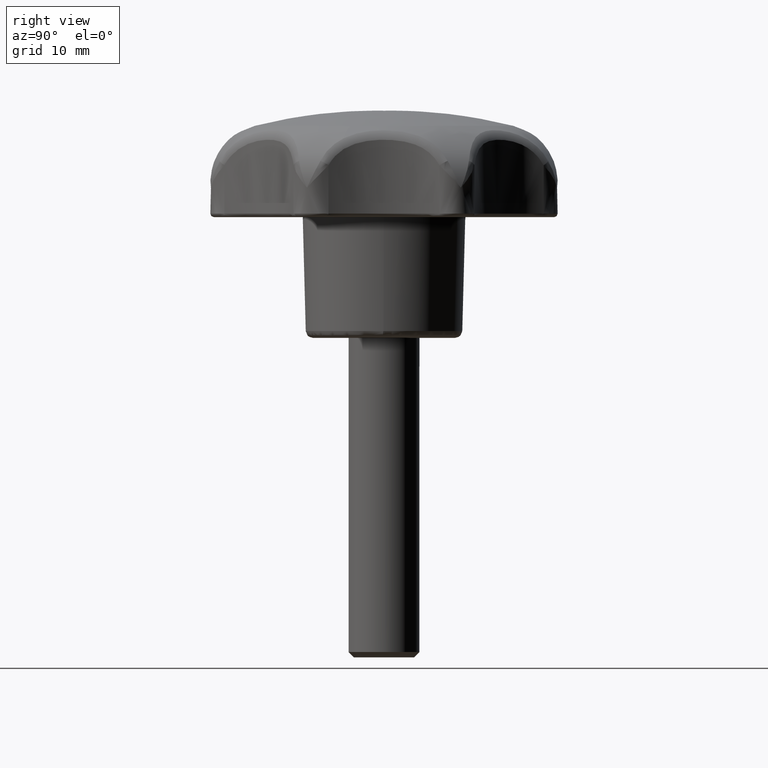
[diagram: clean part render]
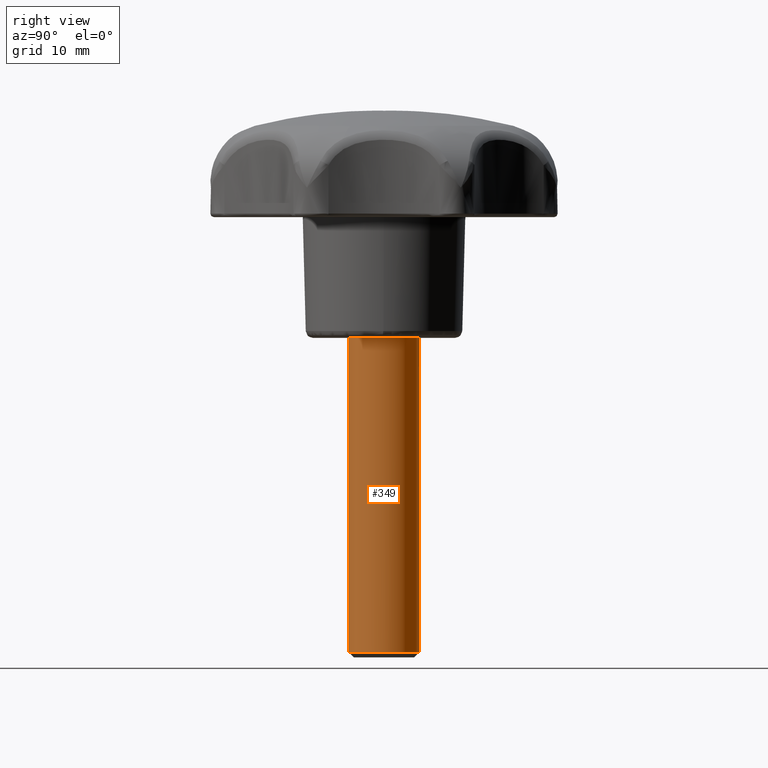
[diagram: same view with one face highlighted and labeled with its STEP entity id]
A machine part, right view. The second image highlights one B-rep face of the part: STEP entity #349.
In plain terms, the highlighted face is a freeform B-spline surface patch.
Its self-contained STEP definition (entity closure, byte-faithful):
#101=CARTESIAN_POINT('',(0.348769088338190,-4.987630330396925,-44.249999999952479));
#102=VERTEX_POINT('',#101);
#125=CARTESIAN_POINT('',(-0.348769088338190,4.987630330396926,-44.249999999952479));
#126=VERTEX_POINT('',#125);
#172=CARTESIAN_POINT('',(5.0,0.0,-44.250000000000000));
#173=VERTEX_POINT('',#172);
#174=CARTESIAN_POINT('',(-0.348769088338190,4.987630330396926,-44.249999999952479));
#175=CARTESIAN_POINT('',(-0.174590783221952,4.999813171415988,-44.249999999953260));
#176=CARTESIAN_POINT('',(0.000012832443140,4.999816487507792,-44.249999999954099));
#177=CARTESIAN_POINT('',(5.000006192162183,4.999911447952518,-44.249999999977952));
#178=CARTESIAN_POINT('',(5.0,0.0,-44.250000000000000));
#186=(BOUNDED_CURVE()B_SPLINE_CURVE(2,(#174,#175,#176,#177,#178),.UNSPECIFIED.,.F.,.U.)B_SPLINE_CURVE_WITH_KNOTS((3,2,3),(0.237829682990778,0.250000000000000,0.500000000000000),.UNSPECIFIED.)CURVE()GEOMETRIC_REPRESENTATION_ITEM()RATIONAL_B_SPLINE_CURVE((0.972871408695934,0.985741586708755,1.0,0.707106781186548,1.0))REPRESENTATION_ITEM(''));
#187=EDGE_CURVE('',#126,#173,#186,.T.);
#189=CARTESIAN_POINT('',(5.0,0.0,-44.250000000000000));
#190=CARTESIAN_POINT('',(4.978236804669798,-4.623474288836758,-44.249999999976247));
#191=CARTESIAN_POINT('',(0.348769088338190,-4.987630330396925,-44.249999999952479));
#199=(BOUNDED_CURVE()B_SPLINE_CURVE(2,(#189,#190,#191),.UNSPECIFIED.,.F.,.U.)B_SPLINE_CURVE_WITH_KNOTS((3,3),(0.500000000000000,0.736331300620415),.UNSPECIFIED.)CURVE()GEOMETRIC_REPRESENTATION_ITEM()RATIONAL_B_SPLINE_CURVE((1.0,0.723120658619668,0.969723356146038))REPRESENTATION_ITEM(''));
#200=EDGE_CURVE('',#173,#102,#199,.T.);
#279=CARTESIAN_POINT('',(-0.418513875635520,4.983746030077691,1.106250000000001));
#280=CARTESIAN_POINT('',(-0.362145765980585,4.987193651357120,1.106250000000001));
#281=CARTESIAN_POINT('',(4.685431294435048,5.295916689783620,1.106250000000001));
#282=CARTESIAN_POINT('',(4.990673992109334,0.305242697674285,1.106250000000001));
#283=CARTESIAN_POINT('',(5.295916689783620,-4.685431294435048,1.106250000000001));
#284=CARTESIAN_POINT('',(0.269948123718851,-4.992832700729545,1.106250000000002));
#285=CARTESIAN_POINT('',(0.234859726969785,-4.994978799011594,1.106250000000001));
#286=CARTESIAN_POINT('',(-0.418513875635520,4.983746030077691,-45.383906249999995));
#287=CARTESIAN_POINT('',(-0.362145765980585,4.987193651357120,-45.383906250000024));
#288=CARTESIAN_POINT('',(4.685431294435048,5.295916689783620,-45.383906250000010));
#289=CARTESIAN_POINT('',(4.990673992109334,0.305242697674285,-45.383906250000010));
#290=CARTESIAN_POINT('',(5.295916689783620,-4.685431294435048,-45.383906250000010));
#291=CARTESIAN_POINT('',(0.269948123718851,-4.992832700729545,-45.383906250000024));
#292=CARTESIAN_POINT('',(0.234859726969785,-4.994978799011594,-45.383906249999981));
#300=(BOUNDED_SURFACE()B_SPLINE_SURFACE(2,1,((#279,#286),(#280,#287),(#281,#288),(#282,#289),(#283,#290),(#284,#291),(#285,#292)),.UNSPECIFIED.,.F.,.F.,.U.)B_SPLINE_SURFACE_WITH_KNOTS((3,1,2,1,3),(2,2),(0.0,0.134215212236450,8.418486459698348,16.702757707160249,16.785856004179220),(0.0,46.490156250000020),.UNSPECIFIED.)GEOMETRIC_REPRESENTATION_ITEM()RATIONAL_B_SPLINE_SURFACE(((1.009490448671079,1.009490448671079),(1.004745224335539,1.004745224335539),(0.707106781186548,0.707106781186548),(1.0,1.0),(0.707106781186548,0.707106781186548),(1.002937968466358,1.002937968466358),(1.005875936932717,1.005875936932717)))REPRESENTATION_ITEM('')SURFACE());
#301=CARTESIAN_POINT('',(-0.305242697701054,4.990673992107697,1.554312E-015));
#302=VERTEX_POINT('',#301);
#303=CARTESIAN_POINT('',(-0.305242697701054,4.990673992107697,1.554312E-015));
#304=CARTESIAN_POINT('',(-0.348769088338190,4.987630330396926,-44.249999999952479));
#305=QUASI_UNIFORM_CURVE('',1,(#303,#304),.UNSPECIFIED.,.F.,.U.);
#306=EDGE_CURVE('',#302,#126,#305,.T.);
#307=ORIENTED_EDGE('',*,*,#306,.F.);
#308=CARTESIAN_POINT('',(5.0,0.0,0.0));
#309=VERTEX_POINT('',#308);
#310=CARTESIAN_POINT('',(-0.305242697701054,4.990673992107698,0.0));
#311=CARTESIAN_POINT('',(-0.152763816506367,5.0,0.0));
#312=CARTESIAN_POINT('',(0.0,5.0,0.0));
#313=CARTESIAN_POINT('',(5.000000000000001,5.000000000000001,0.0));
#314=CARTESIAN_POINT('',(5.0,0.0,0.0));
#322=(BOUNDED_CURVE()B_SPLINE_CURVE(2,(#310,#311,#312,#313,#314),.UNSPECIFIED.,.F.,.U.)B_SPLINE_CURVE_WITH_KNOTS((3,2,3),(0.239332962241043,0.250000000000000,0.500000000000000),.UNSPECIFIED.)CURVE()GEOMETRIC_REPRESENTATION_ITEM()RATIONAL_B_SPLINE_CURVE((0.976072041671218,0.987502787902298,1.0,0.707106781186548,1.0))REPRESENTATION_ITEM(''));
#323=EDGE_CURVE('',#302,#309,#322,.T.);
#324=ORIENTED_EDGE('',*,*,#323,.T.);
#325=CARTESIAN_POINT('',(0.305242697701055,-4.990673992107697,1.554312E-015));
#326=VERTEX_POINT('',#325);
#327=CARTESIAN_POINT('',(5.0,0.0,0.0));
#328=CARTESIAN_POINT('',(4.999999999999999,-4.703530334503197,0.0));
#329=CARTESIAN_POINT('',(0.305242697701056,-4.990673992107698,0.0));
#337=(BOUNDED_CURVE()B_SPLINE_CURVE(2,(#327,#328,#329),.UNSPECIFIED.,.F.,.U.)B_SPLINE_CURVE_WITH_KNOTS((3,3),(0.500000000000000,0.739332962241043),.UNSPECIFIED.)CURVE()GEOMETRIC_REPRESENTATION_ITEM()RATIONAL_B_SPLINE_CURVE((1.0,0.719603993284250,0.976072041671218))REPRESENTATION_ITEM(''));
#338=EDGE_CURVE('',#309,#326,#337,.T.);
#339=ORIENTED_EDGE('',*,*,#338,.T.);
#340=CARTESIAN_POINT('',(0.305242697701055,-4.990673992107697,1.554312E-015));
#341=CARTESIAN_POINT('',(0.348769088338190,-4.987630330396925,-44.249999999952479));
#342=QUASI_UNIFORM_CURVE('',1,(#340,#341),.UNSPECIFIED.,.F.,.U.);
#343=EDGE_CURVE('',#326,#102,#342,.T.);
#344=ORIENTED_EDGE('',*,*,#343,.T.);
#345=ORIENTED_EDGE('',*,*,#200,.F.);
#346=ORIENTED_EDGE('',*,*,#187,.F.);
#347=EDGE_LOOP('',(#307,#324,#339,#344,#345,#346));
#348=FACE_OUTER_BOUND('',#347,.T.);
#349=ADVANCED_FACE('',(#348),#300,.T.);